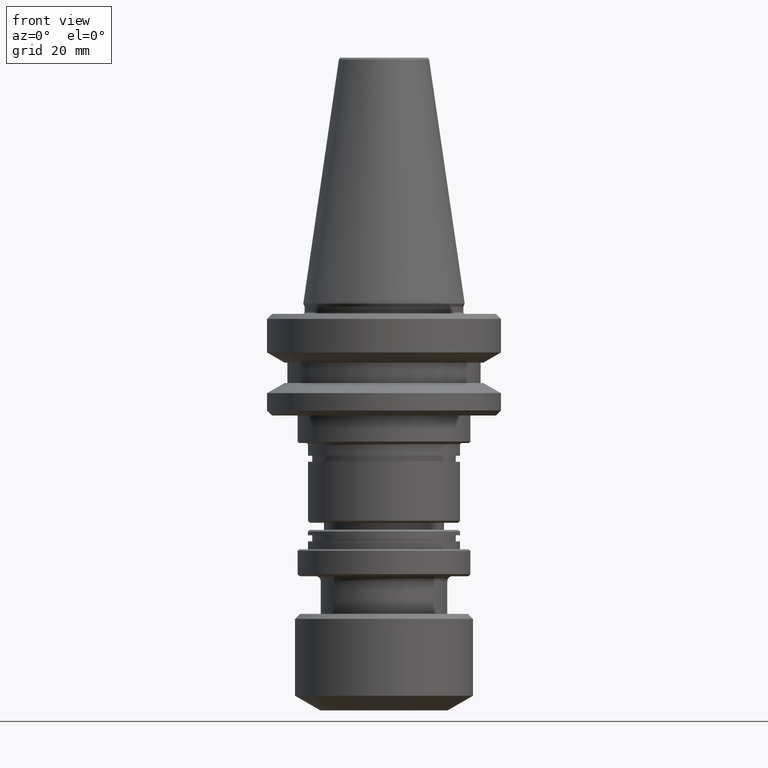
[diagram: clean part render]
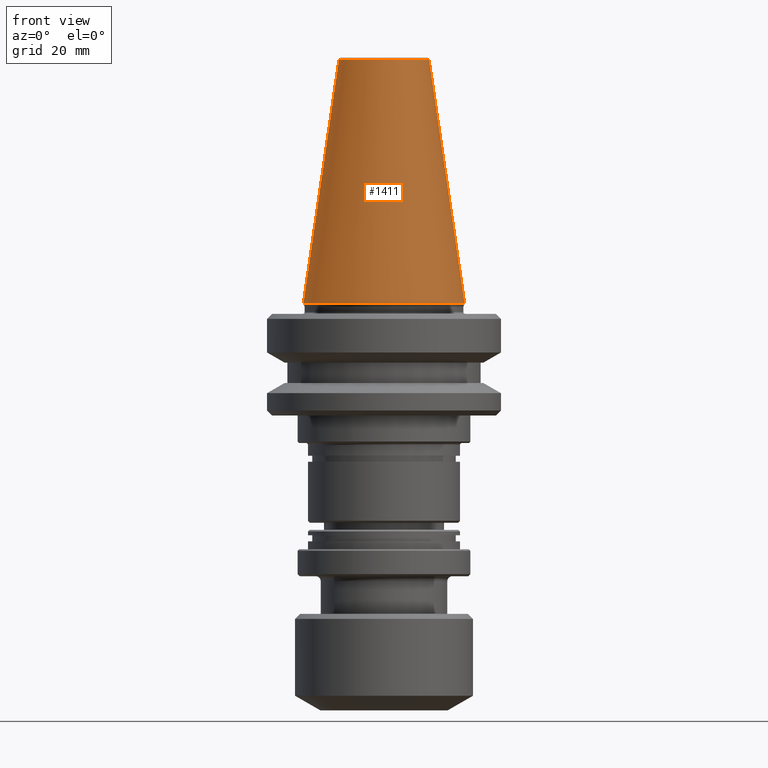
[diagram: same view with one face highlighted and labeled with its STEP entity id]
A machine part, front view. The second image highlights one B-rep face of the part: STEP entity #1411.
In plain terms, the highlighted conical surface has half-angle 8.297 deg.
Its self-contained STEP definition (entity closure, byte-faithful):
#46 = DIRECTION ( 'NONE',  ( 0.1443082268835055900, 1.767266081435151000E-017, -0.9895327865481459200 ) ) ;
#180 = VERTEX_POINT ( 'NONE', #247 ) ;
#247 = CARTESIAN_POINT ( 'NONE',  ( 15.87499999999975300, 0.0000000000000000000, -4.440892098500626200E-013 ) ) ;
#251 = CARTESIAN_POINT ( 'NONE',  ( -8.878994820583519900, 0.0000000000000000000, 47.97215411344102200 ) ) ;
#307 = CIRCLE ( 'NONE', #1398, 15.87499999999975300 ) ;
#330 = VERTEX_POINT ( 'NONE', #1488 ) ;
#390 = CARTESIAN_POINT ( 'NONE',  ( -8.878994820583519900, 0.0000000000000000000, 47.97215411344102200 ) ) ;
#434 = ORIENTED_EDGE ( 'NONE', *, *, #1541, .F. ) ;
#461 = EDGE_LOOP ( 'NONE', ( #434, #1472, #2092, #1403 ) ) ;
#486 = VERTEX_POINT ( 'NONE', #251 ) ;
#505 = DIRECTION ( 'NONE',  ( -0.0000000000000000000, -0.0000000000000000000, 1.000000000000000000 ) ) ;
#597 = DIRECTION ( 'NONE',  ( 1.000000000000000000, 0.0000000000000000000, 0.0000000000000000000 ) ) ;
#662 = CARTESIAN_POINT ( 'NONE',  ( 8.878994820583519900, 1.087363258667353600E-015, 47.97215411344102200 ) ) ;
#725 = LINE ( 'NONE', #662, #2071 ) ;
#902 = DIRECTION ( 'NONE',  ( 0.0000000000000000000, 0.0000000000000000000, -1.000000000000000000 ) ) ;
#969 = CARTESIAN_POINT ( 'NONE',  ( 0.0000000000000000000, 0.0000000000000000000, 47.97215411344102200 ) ) ;
#1124 = EDGE_CURVE ( 'NONE', #486, #330, #2172, .T. ) ;
#1178 = AXIS2_PLACEMENT_3D ( 'NONE', #2062, #505, #1799 ) ;
#1245 = VECTOR ( 'NONE', #1940, 1000.000000000000100 ) ;
#1248 = DIRECTION ( 'NONE',  ( -0.0000000000000000000, -0.0000000000000000000, 1.000000000000000000 ) ) ;
#1255 = CARTESIAN_POINT ( 'NONE',  ( -15.87499999999975300, 1.944126793646393300E-015, -4.440892098500626200E-013 ) ) ;
#1398 = AXIS2_PLACEMENT_3D ( 'NONE', #1817, #1248, #597 ) ;
#1403 = ORIENTED_EDGE ( 'NONE', *, *, #1781, .T. ) ;
#1411 = ADVANCED_FACE ( 'NONE', ( #1673 ), #1515, .T. ) ;
#1472 = ORIENTED_EDGE ( 'NONE', *, *, #1124, .F. ) ;
#1488 = CARTESIAN_POINT ( 'NONE',  ( 8.878994820583519900, 1.515745026156873300E-015, 47.97215411344102200 ) ) ;
#1515 = CONICAL_SURFACE ( 'NONE', #1715, 8.878994820583519900, 0.1448138461595578100 ) ;
#1541 = EDGE_CURVE ( 'NONE', #330, #180, #725, .T. ) ;
#1603 = DIRECTION ( 'NONE',  ( -1.000000000000000000, 0.0000000000000000000, 0.0000000000000000000 ) ) ;
#1673 = FACE_OUTER_BOUND ( 'NONE', #461, .T. ) ;
#1710 = LINE ( 'NONE', #390, #1245 ) ;
#1715 = AXIS2_PLACEMENT_3D ( 'NONE', #969, #902, #1603 ) ;
#1781 = EDGE_CURVE ( 'NONE', #1846, #180, #307, .T. ) ;
#1799 = DIRECTION ( 'NONE',  ( 1.000000000000000000, 0.0000000000000000000, 0.0000000000000000000 ) ) ;
#1817 = CARTESIAN_POINT ( 'NONE',  ( 0.0000000000000000000, 0.0000000000000000000, -4.440892098500626200E-013 ) ) ;
#1846 = VERTEX_POINT ( 'NONE', #1255 ) ;
#1940 = DIRECTION ( 'NONE',  ( -0.1443082268835055900, 0.0000000000000000000, -0.9895327865481459200 ) ) ;
#2057 = EDGE_CURVE ( 'NONE', #486, #1846, #1710, .T. ) ;
#2062 = CARTESIAN_POINT ( 'NONE',  ( 0.0000000000000000000, 0.0000000000000000000, 47.97215411344102200 ) ) ;
#2071 = VECTOR ( 'NONE', #46, 1000.000000000000100 ) ;
#2092 = ORIENTED_EDGE ( 'NONE', *, *, #2057, .T. ) ;
#2172 = CIRCLE ( 'NONE', #1178, 8.878994820583519900 ) ;